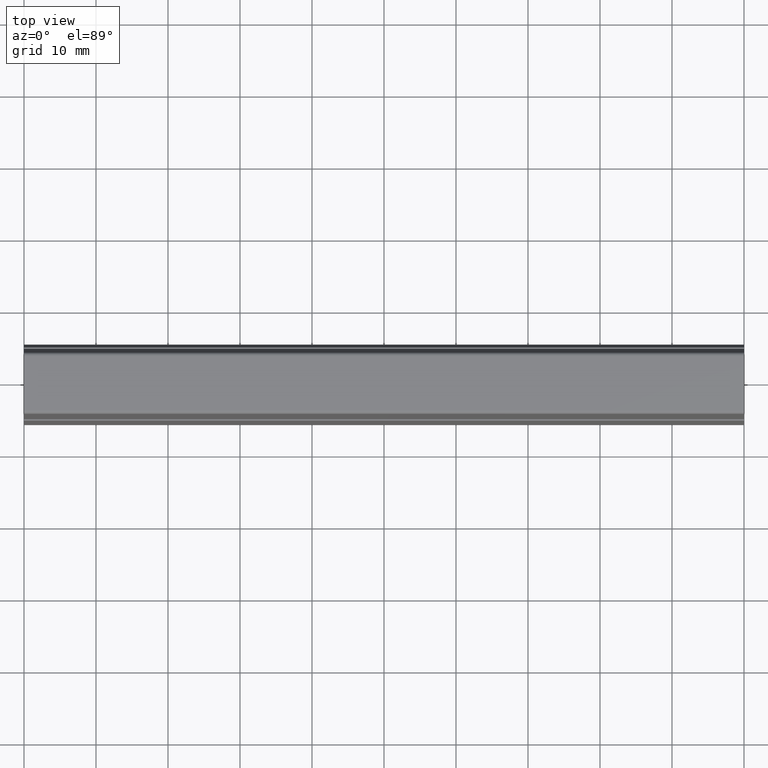
[diagram: clean part render]
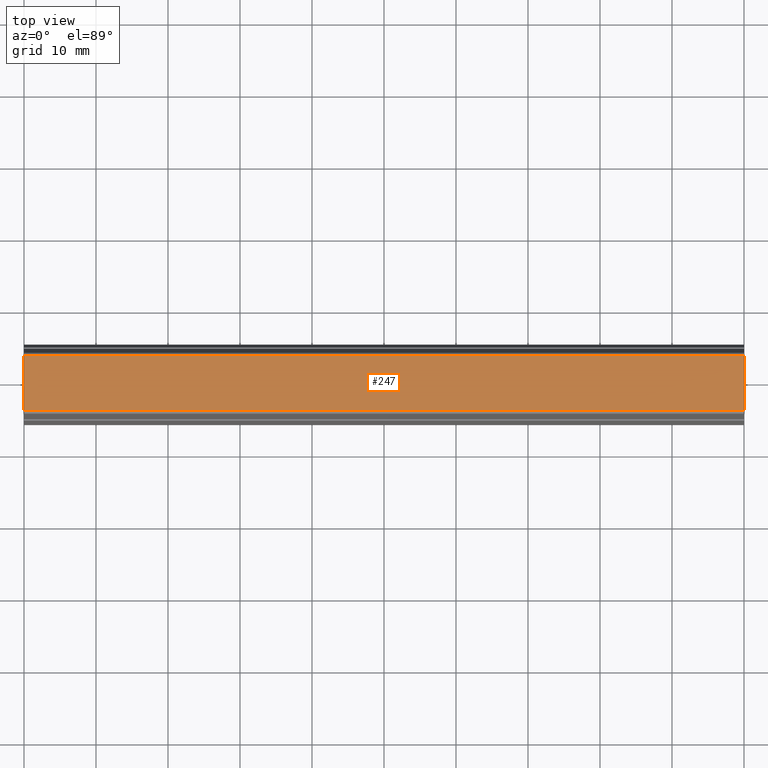
[diagram: same view with one face highlighted and labeled with its STEP entity id]
A machine part, top view. The second image highlights one B-rep face of the part: STEP entity #247.
In plain terms, the highlighted planar face has unit normal (0, 0, 1).
Its self-contained STEP definition (entity closure, byte-faithful):
#208=CARTESIAN_POINT('',(105.0,4.157303879116741,0.799999999999994));
#209=DIRECTION('',(0.0,0.0,1.0));
#210=DIRECTION('',(-1.0,0.0,0.0));
#211=AXIS2_PLACEMENT_3D('',#208,#209,#210);
#212=PLANE('',#211);
#213=CARTESIAN_POINT('',(100.0,-3.779367162833399,0.799999999999996));
#214=VERTEX_POINT('',#213);
#215=CARTESIAN_POINT('',(100.0,3.779367162833401,0.799999999999994));
#216=VERTEX_POINT('',#215);
#217=CARTESIAN_POINT('',(100.0,-3.779367162833399,0.799999999999996));
#218=DIRECTION('',(0.0,1.0,0.0));
#219=VECTOR('',#218,7.558734325666800);
#220=LINE('',#217,#219);
#221=EDGE_CURVE('',#214,#216,#220,.T.);
#222=ORIENTED_EDGE('',*,*,#221,.T.);
#223=CARTESIAN_POINT('',(0.0,3.779367162833401,0.799999999999994));
#224=VERTEX_POINT('',#223);
#225=CARTESIAN_POINT('',(100.0,3.779367162833401,0.799999999999994));
#226=DIRECTION('',(-1.0,0.0,0.0));
#227=VECTOR('',#226,100.0);
#228=LINE('',#225,#227);
#229=EDGE_CURVE('',#216,#224,#228,.T.);
#230=ORIENTED_EDGE('',*,*,#229,.T.);
#231=CARTESIAN_POINT('',(0.0,-3.779367162833399,0.799999999999996));
#232=VERTEX_POINT('',#231);
#233=CARTESIAN_POINT('',(0.0,-3.779367162833399,0.799999999999996));
#234=DIRECTION('',(0.0,1.0,0.0));
#235=VECTOR('',#234,7.558734325666800);
#236=LINE('',#233,#235);
#237=EDGE_CURVE('',#232,#224,#236,.T.);
#238=ORIENTED_EDGE('',*,*,#237,.F.);
#239=CARTESIAN_POINT('',(0.0,-3.779367162833399,0.799999999999996));
#240=DIRECTION('',(1.0,0.0,0.0));
#241=VECTOR('',#240,100.0);
#242=LINE('',#239,#241);
#243=EDGE_CURVE('',#232,#214,#242,.T.);
#244=ORIENTED_EDGE('',*,*,#243,.T.);
#245=EDGE_LOOP('',(#222,#230,#238,#244));
#246=FACE_OUTER_BOUND('',#245,.T.);
#247=ADVANCED_FACE('',(#246),#212,.T.);